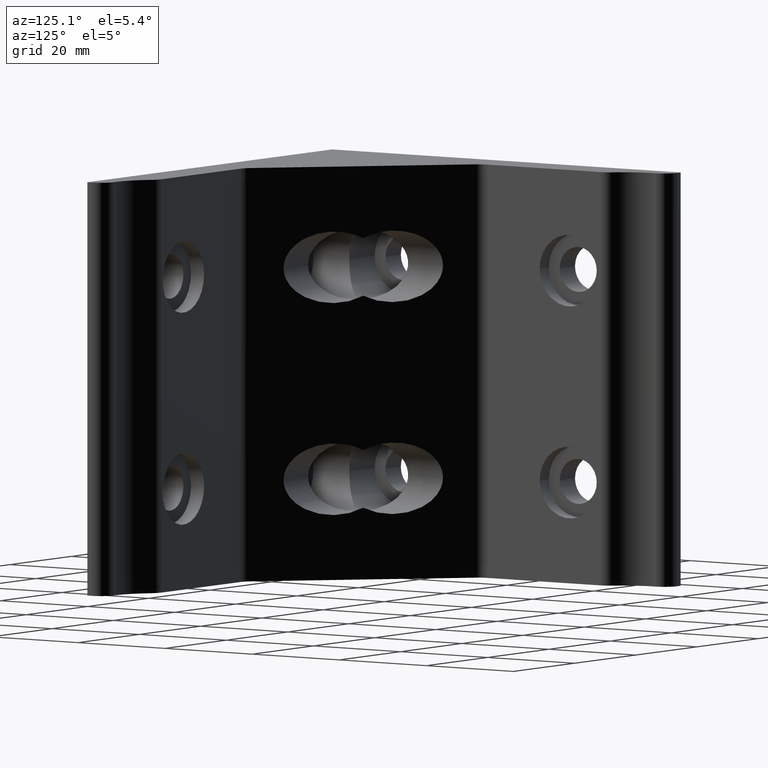
[diagram: clean part render]
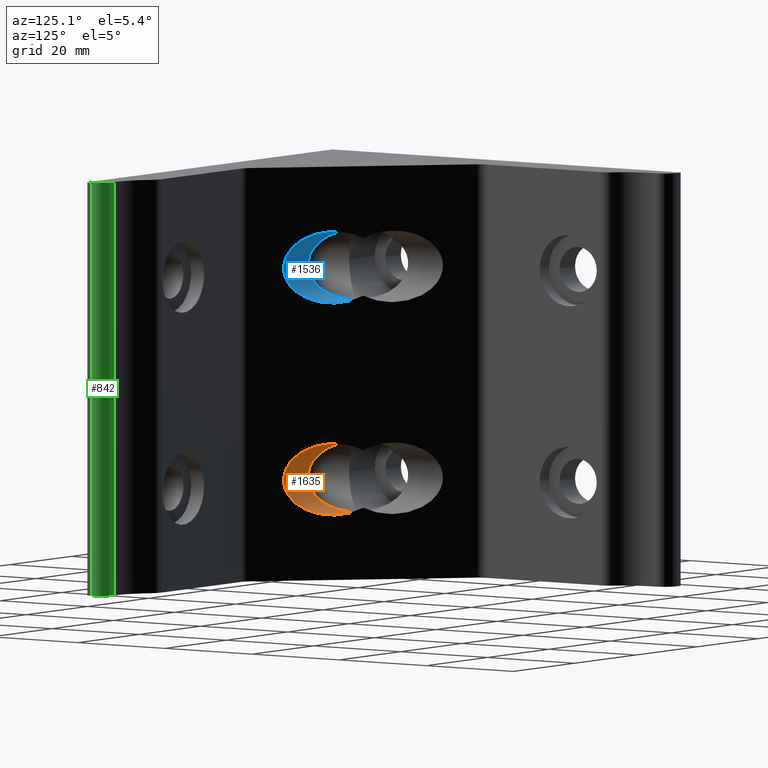
[diagram: same view with three faces highlighted in distinct colors, each labeled with its STEP entity id]
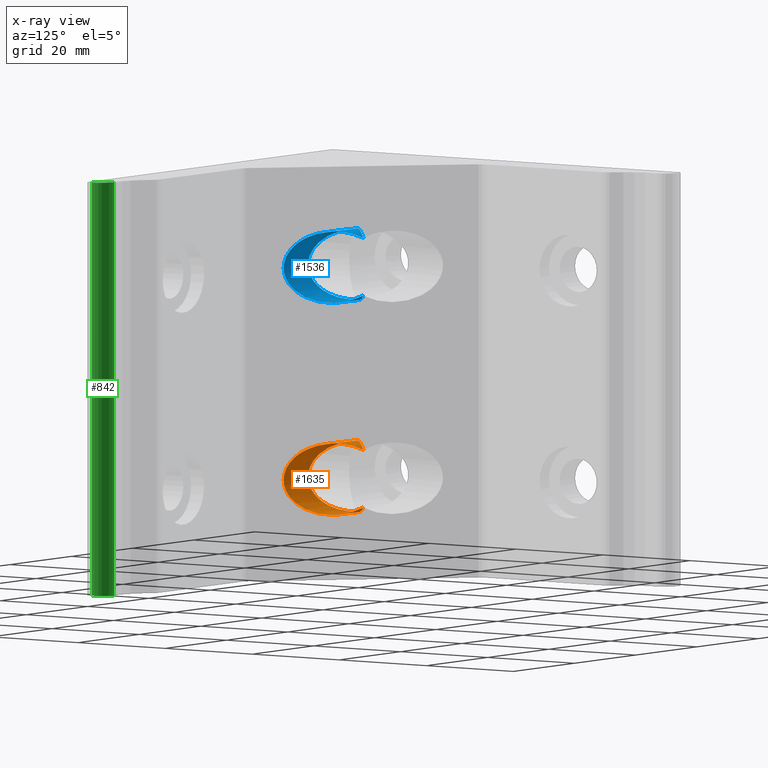
[diagram: x-ray of the same camera — body ghosted, the three highlighted faces saturated]
A machine part, auxiliary view with three faces highlighted in distinct colors.
The next image is the same camera in x-ray (body ghosted, the three faces saturated) — at least one of them is partly hidden behind the body in this view.
Their STEP definitions:

[orange] entity #1635 — the highlighted cylindrical surface (edge-blend (fillet) strip) has radius 6.75 mm, axis along (-1, 0, 0).
#271=CARTESIAN_POINT('',(24.000018716367435,24.000018724322672,-25.437108798652918));
#272=VERTEX_POINT('',#271);
#273=CARTESIAN_POINT('',(34.750040387266836,13.249997053447260,-19.999986901764032));
#274=VERTEX_POINT('',#273);
#275=CARTESIAN_POINT('',(28.000041880785837,19.999995559920080,-19.999986901764032));
#276=DIRECTION('',(-0.707106781186120,-0.707106781186976,0.0));
#277=DIRECTION('',(0.707106781186976,-0.707106781186120,0.0));
#278=AXIS2_PLACEMENT_3D('',#275,#276,#277);
#279=ELLIPSE('',#278,9.545939433857777,6.749998506472821);
#280=EDGE_CURVE('',#272,#274,#279,.T.);
#282=CARTESIAN_POINT('',(24.000018716538079,24.000018724144866,-14.562865004744438));
#283=VERTEX_POINT('',#282);
#284=CARTESIAN_POINT('',(28.000041880785837,19.999995559920080,-19.999986901764032));
#285=DIRECTION('',(-0.707106781186120,-0.707106781186976,0.0));
#286=DIRECTION('',(0.707106781186976,-0.707106781186120,0.0));
#287=AXIS2_PLACEMENT_3D('',#284,#285,#286);
#288=ELLIPSE('',#287,9.545939433857777,6.749998506472821);
#289=EDGE_CURVE('',#274,#283,#288,.T.);
#1288=CARTESIAN_POINT('',(26.749994061392954,13.249997053447260,-19.999986901764032));
#1289=VERTEX_POINT('',#1288);
#1296=CARTESIAN_POINT('',(19.999995559919967,19.999995559920080,-26.749985405736936));
#1297=VERTEX_POINT('',#1296);
#1298=CARTESIAN_POINT('',(26.749994061392954,13.249997053447260,-19.999986901764032));
#1299=CARTESIAN_POINT('',(26.749994061392954,13.249997053447260,-20.321407940804598));
#1300=CARTESIAN_POINT('',(26.695620732449697,13.304370382359139,-21.076625667714353));
#1301=CARTESIAN_POINT('',(26.388535642476427,13.611455472048874,-22.331869680598370));
#1302=CARTESIAN_POINT('',(25.761838146081232,14.238152968124723,-23.618688588530503));
#1303=CARTESIAN_POINT('',(25.015062052279745,14.984929060343347,-24.558337668970267));
#1304=CARTESIAN_POINT('',(24.129594251945946,15.870396861313566,-25.381112265073867));
#1305=CARTESIAN_POINT('',(23.103146656368040,16.896844439051620,-26.053211513201507));
#1306=CARTESIAN_POINT('',(21.782080122997172,18.217911030371852,-26.558774536156555));
#1307=CARTESIAN_POINT('',(20.737748483213522,19.262242474377217,-26.730685308415413));
#1308=CARTESIAN_POINT('',(20.146895854644093,19.853095242470495,-26.749983823299225));
#1309=CARTESIAN_POINT('',(19.999995559919924,19.999995559920301,-26.749985405736940));
#1310=B_SPLINE_CURVE_WITH_KNOTS('',3,(#1298,#1299,#1300,#1301,#1302,#1303,#1304,#1305,#1306,#1307,#1308,#1309),.UNSPECIFIED.,.F.,.U.,(4,1,1,1,1,1,1,1,1,4),(0.0,0.965864149745438,2.263053308432690,3.953662654707975,5.608530894462083,6.480947297210366,8.443630466023322,10.386196269647339,12.269732819113608,12.892984431025196),.UNSPECIFIED.);
#1311=EDGE_CURVE('',#1289,#1297,#1310,.T.);
#1330=CARTESIAN_POINT('',(19.999995559919967,19.999995559920535,-13.249988397791128));
#1331=VERTEX_POINT('',#1330);
#1347=CARTESIAN_POINT('',(19.999995559920034,19.999995559920723,-13.249988397791128));
#1348=CARTESIAN_POINT('',(20.560085256224344,19.439905826738741,-13.249892819479445));
#1349=CARTESIAN_POINT('',(21.578969136827141,18.421021958757592,-13.376099225738248));
#1350=CARTESIAN_POINT('',(23.005282327554823,16.994708783194255,-13.899316566364682));
#1351=CARTESIAN_POINT('',(24.136286865444390,15.863704246088218,-14.612852858091962));
#1352=CARTESIAN_POINT('',(25.064106446063079,14.935884667232585,-15.486429583235715));
#1353=CARTESIAN_POINT('',(25.724069551719708,14.275921562228632,-16.366854947786429));
#1354=CARTESIAN_POINT('',(26.208855255781600,13.791135858628877,-17.296471030971816));
#1355=CARTESIAN_POINT('',(26.535603655104865,13.464387459574937,-18.217115729503654));
#1356=CARTESIAN_POINT('',(26.714717058521501,13.285274056291200,-19.130699658870146));
#1357=CARTESIAN_POINT('',(26.749994061393068,13.249997053447260,-19.741258747909907));
#1358=CARTESIAN_POINT('',(26.749994061393068,13.249997053447260,-19.999986901764032));
#1359=B_SPLINE_CURVE_WITH_KNOTS('',3,(#1347,#1348,#1349,#1350,#1351,#1352,#1353,#1354,#1355,#1356,#1357,#1358),.UNSPECIFIED.,.F.,.U.,(4,1,1,1,1,1,1,1,1,4),(38.678839477752589,41.054825114789701,43.001901861827783,44.911088186749659,46.288007613627585,47.717210725368574,48.742882823178284,49.741815548240275,50.795015249256657,51.572036982258709),.UNSPECIFIED.);
#1360=EDGE_CURVE('',#1331,#1289,#1359,.T.);
#1374=CARTESIAN_POINT('',(24.000018716453155,24.000018724238544,-14.562865004987428));
#1375=CARTESIAN_POINT('',(23.753516019208405,23.753516027451042,-14.381516027372140));
#1376=CARTESIAN_POINT('',(23.125293288210969,23.125294356889754,-13.983149071038612));
#1377=CARTESIAN_POINT('',(21.798743593897257,21.798736280465164,-13.418841232913350));
#1378=CARTESIAN_POINT('',(20.694615800224426,20.694642525909806,-13.249976839397149));
#1379=CARTESIAN_POINT('',(19.999995559919959,19.999995559920322,-13.249988397791128));
#1380=B_SPLINE_CURVE_WITH_KNOTS('',3,(#1374,#1375,#1376,#1377,#1378,#1379),.UNSPECIFIED.,.F.,.U.,(4,1,1,4),(0.0,1.179462295930599,2.915469664699889,5.862084338179670),.UNSPECIFIED.);
#1381=EDGE_CURVE('',#283,#1331,#1380,.T.);
#1407=CARTESIAN_POINT('',(19.999995559919892,19.999995559919938,-26.749985405736936));
#1408=CARTESIAN_POINT('',(20.694615800219282,20.694642525884575,-26.749996964130784));
#1409=CARTESIAN_POINT('',(21.798743593834388,21.798736280526100,-26.581132570607004));
#1410=CARTESIAN_POINT('',(23.125293288320904,23.125294356793347,-26.016824732502531));
#1411=CARTESIAN_POINT('',(23.753516019057656,23.753516027600199,-25.618457776131862));
#1412=CARTESIAN_POINT('',(24.000018716318323,24.000018724377242,-25.437108798511819));
#1413=B_SPLINE_CURVE_WITH_KNOTS('',3,(#1407,#1408,#1409,#1410,#1411,#1412),.UNSPECIFIED.,.F.,.U.,(4,1,1,4),(12.893018224786701,15.839632898263464,17.575640267033297,18.755102562982074),.UNSPECIFIED.);
#1414=EDGE_CURVE('',#1297,#272,#1413,.T.);
#1622=CARTESIAN_POINT('',(4.999998889979906,19.999995559920080,-19.999986901764032));
#1623=DIRECTION('',(-1.0,0.0,0.0));
#1624=DIRECTION('',(0.0,0.592612134394427,-0.805487962770693));
#1625=AXIS2_PLACEMENT_3D('',#1622,#1623,#1624);
#1626=CYLINDRICAL_SURFACE('',#1625,6.749998506472821);
#1627=ORIENTED_EDGE('',*,*,#1414,.F.);
#1628=ORIENTED_EDGE('',*,*,#1311,.F.);
#1629=ORIENTED_EDGE('',*,*,#1360,.F.);
#1630=ORIENTED_EDGE('',*,*,#1381,.F.);
#1631=ORIENTED_EDGE('',*,*,#289,.F.);
#1632=ORIENTED_EDGE('',*,*,#280,.F.);
#1633=EDGE_LOOP('',(#1627,#1628,#1629,#1630,#1631,#1632));
#1634=FACE_OUTER_BOUND('',#1633,.T.);
#1635=ADVANCED_FACE('',(#1634),#1626,.F.);

[blue] entity #1536 — the highlighted cylindrical surface (edge-blend (fillet) strip) has radius 6.75 mm, axis along (-1, 0, 0).
#242=CARTESIAN_POINT('',(24.000018716367435,24.000018724322672,14.562882321187011));
#243=VERTEX_POINT('',#242);
#244=CARTESIAN_POINT('',(34.750040387266836,13.249997053447260,20.000004218075901));
#245=VERTEX_POINT('',#244);
#246=CARTESIAN_POINT('',(28.000041880785837,19.999995559920080,20.000004218075901));
#247=DIRECTION('',(-0.707106781186120,-0.707106781186976,0.0));
#248=DIRECTION('',(0.707106781186976,-0.707106781186120,0.0));
#249=AXIS2_PLACEMENT_3D('',#246,#247,#248);
#250=ELLIPSE('',#249,9.545939433857777,6.749998506472821);
#251=EDGE_CURVE('',#243,#245,#250,.T.);
#253=CARTESIAN_POINT('',(24.000018716538079,24.000018724144866,25.437126115095495));
#254=VERTEX_POINT('',#253);
#255=CARTESIAN_POINT('',(28.000041880785837,19.999995559920080,20.000004218075901));
#256=DIRECTION('',(-0.707106781186120,-0.707106781186976,0.0));
#257=DIRECTION('',(0.707106781186976,-0.707106781186120,0.0));
#258=AXIS2_PLACEMENT_3D('',#255,#256,#257);
#259=ELLIPSE('',#258,9.545939433857777,6.749998506472821);
#260=EDGE_CURVE('',#245,#254,#259,.T.);
#1087=CARTESIAN_POINT('',(26.749994061392954,13.249997053447260,20.000004218075901));
#1088=VERTEX_POINT('',#1087);
#1095=CARTESIAN_POINT('',(19.999995559919967,19.999995559920080,13.250005714102997));
#1096=VERTEX_POINT('',#1095);
#1097=CARTESIAN_POINT('',(26.749994061392954,13.249997053447260,20.000004218075901));
#1098=CARTESIAN_POINT('',(26.749994061392954,13.249997053447260,19.678583179033524));
#1099=CARTESIAN_POINT('',(26.695620732449242,13.304370382358229,18.923365452121793));
#1100=CARTESIAN_POINT('',(26.388535642474153,13.611455472051603,17.668121439236003));
#1101=CARTESIAN_POINT('',(25.761838146078389,14.238152968129725,16.381302531303476));
#1102=CARTESIAN_POINT('',(25.015062052274516,14.984929060344257,15.441653450864649));
#1103=CARTESIAN_POINT('',(24.129594251941512,15.870396861320842,14.618878854761547));
#1104=CARTESIAN_POINT('',(23.103146656360764,16.896844439054803,13.946779606635758));
#1105=CARTESIAN_POINT('',(21.782080122994216,18.217911030376854,13.441216583682433));
#1106=CARTESIAN_POINT('',(20.737748483210567,19.262242474376762,13.269305811424374));
#1107=CARTESIAN_POINT('',(20.146895854643851,19.853095242470779,13.250007296540714));
#1108=CARTESIAN_POINT('',(19.999995559920105,19.999995559920350,13.250005714103009));
#1109=B_SPLINE_CURVE_WITH_KNOTS('',3,(#1097,#1098,#1099,#1100,#1101,#1102,#1103,#1104,#1105,#1106,#1107,#1108),.UNSPECIFIED.,.F.,.U.,(4,1,1,1,1,1,1,1,1,4),(0.0,0.965864149750914,2.263053308438612,3.953662654715253,5.608530894471271,6.480947297219456,8.443630466032710,10.386196269654061,12.269732819114736,12.892984431024788),.UNSPECIFIED.);
#1110=EDGE_CURVE('',#1088,#1096,#1109,.T.);
#1129=CARTESIAN_POINT('',(19.999995559919967,19.999995559920080,26.750002722048805));
#1130=VERTEX_POINT('',#1129);
#1146=CARTESIAN_POINT('',(19.999995559920041,19.999995559920158,26.750002722048809));
#1147=CARTESIAN_POINT('',(20.560085256224689,19.439905826738567,26.750098300360506));
#1148=CARTESIAN_POINT('',(21.578969136827709,18.421021958758956,26.623891894101654));
#1149=CARTESIAN_POINT('',(23.005282327554596,16.994708783194255,26.100674553475237));
#1150=CARTESIAN_POINT('',(24.136286865444390,15.863704246087309,25.387138261747964));
#1151=CARTESIAN_POINT('',(25.064106446063306,14.935884667236223,24.513561536604229));
#1152=CARTESIAN_POINT('',(25.724069551719936,14.275921562226813,23.633136172053540));
#1153=CARTESIAN_POINT('',(26.208855255783192,13.791135858635243,22.703520088868139));
#1154=CARTESIAN_POINT('',(26.535603655103387,13.464387459572208,21.782875390336244));
#1155=CARTESIAN_POINT('',(26.714717058522183,13.285274056292110,20.869291460969791));
#1156=CARTESIAN_POINT('',(26.749994061392840,13.249997053447260,20.258732371930037));
#1157=CARTESIAN_POINT('',(26.749994061392840,13.249997053447260,20.000004218075908));
#1158=B_SPLINE_CURVE_WITH_KNOTS('',3,(#1146,#1147,#1148,#1149,#1150,#1151,#1152,#1153,#1154,#1155,#1156,#1157),.UNSPECIFIED.,.F.,.U.,(4,1,1,1,1,1,1,1,1,4),(38.678839477752632,41.054825114789793,43.001901861827790,44.911088186749666,46.288007613627585,47.717210725368602,48.742882823178306,49.741815548240290,50.795015249256679,51.572036982258730),.UNSPECIFIED.);
#1159=EDGE_CURVE('',#1130,#1088,#1158,.T.);
#1173=CARTESIAN_POINT('',(24.000018716453155,24.000018724238544,25.437126114852504));
#1174=CARTESIAN_POINT('',(23.753516019207041,23.753516027449677,25.618475092468749));
#1175=CARTESIAN_POINT('',(23.125293288208013,23.125294356886570,26.016842048803007));
#1176=CARTESIAN_POINT('',(21.798743593895097,21.798736280463345,26.581149886927228));
#1177=CARTESIAN_POINT('',(20.694615800217459,20.694642525898114,26.750014280442777));
#1178=CARTESIAN_POINT('',(19.999995559919945,19.999995559920187,26.750002722048809));
#1179=B_SPLINE_CURVE_WITH_KNOTS('',3,(#1173,#1174,#1175,#1176,#1177,#1178),.UNSPECIFIED.,.F.,.U.,(4,1,1,4),(0.0,1.179462295936807,2.915469664707228,5.862084338179862),.UNSPECIFIED.);
#1180=EDGE_CURVE('',#254,#1130,#1179,.T.);
#1206=CARTESIAN_POINT('',(19.999995559919938,19.999995559919945,13.250005714102992));
#1207=CARTESIAN_POINT('',(20.694615800218209,20.694642525879239,13.249994155708958));
#1208=CARTESIAN_POINT('',(21.798743593831091,21.798736280525191,13.418858549232404));
#1209=CARTESIAN_POINT('',(23.125293288319881,23.125294356792438,13.983166387336510));
#1210=CARTESIAN_POINT('',(23.753516019056633,23.753516027598835,14.381533343707446));
#1211=CARTESIAN_POINT('',(24.000018716318095,24.000018724376787,14.562882321328111));
#1212=B_SPLINE_CURVE_WITH_KNOTS('',3,(#1206,#1207,#1208,#1209,#1210,#1211),.UNSPECIFIED.,.F.,.U.,(4,1,1,4),(12.893018224786527,15.839632898259161,17.575640267029268,18.755102562982071),.UNSPECIFIED.);
#1213=EDGE_CURVE('',#1096,#243,#1212,.T.);
#1523=CARTESIAN_POINT('',(4.999998889979906,19.999995559920080,20.000004218075901));
#1524=DIRECTION('',(-1.0,0.0,0.0));
#1525=DIRECTION('',(0.0,0.592612134394427,-0.805487962770694));
#1526=AXIS2_PLACEMENT_3D('',#1523,#1524,#1525);
#1527=CYLINDRICAL_SURFACE('',#1526,6.749998506472821);
#1528=ORIENTED_EDGE('',*,*,#1213,.F.);
#1529=ORIENTED_EDGE('',*,*,#1110,.F.);
#1530=ORIENTED_EDGE('',*,*,#1159,.F.);
#1531=ORIENTED_EDGE('',*,*,#1180,.F.);
#1532=ORIENTED_EDGE('',*,*,#260,.F.);
#1533=ORIENTED_EDGE('',*,*,#251,.F.);
#1534=EDGE_LOOP('',(#1528,#1529,#1530,#1531,#1532,#1533));
#1535=FACE_OUTER_BOUND('',#1534,.T.);
#1536=ADVANCED_FACE('',(#1535),#1527,.F.);

[green] entity #842 — the highlighted cylindrical surface (edge-blend (fillet) strip) has radius 3 mm, axis along (0, 0, 1).
#7=CARTESIAN_POINT('',(76.996746588543601,3.999155885909659,-39.0));
#8=VERTEX_POINT('',#7);
#9=CARTESIAN_POINT('',(76.996746588543601,3.999155885909659,39.0));
#10=VERTEX_POINT('',#9);
#11=CARTESIAN_POINT('',(76.996746588543601,3.999155885909659,-39.0));
#12=DIRECTION('',(0.0,0.0,1.0));
#13=VECTOR('',#12,78.0);
#14=LINE('',#11,#13);
#15=EDGE_CURVE('',#8,#10,#14,.T.);
#794=CARTESIAN_POINT('',(79.997492607542540,0.999156630858579,-39.0));
#795=VERTEX_POINT('',#794);
#802=CARTESIAN_POINT('',(79.997492607542540,0.999156630858579,39.0));
#803=VERTEX_POINT('',#802);
#804=CARTESIAN_POINT('',(79.997492607542540,0.999156630858579,-39.0));
#805=DIRECTION('',(0.0,0.0,1.0));
#806=VECTOR('',#805,78.0);
#807=LINE('',#804,#806);
#808=EDGE_CURVE('',#795,#803,#807,.T.);
#819=CARTESIAN_POINT('',(76.997493259572025,0.999156630858579,-78.999973803528064));
#820=DIRECTION('',(0.0,0.0,1.0));
#821=DIRECTION('',(1.0,0.0,0.0));
#822=AXIS2_PLACEMENT_3D('',#819,#820,#821);
#823=CYLINDRICAL_SURFACE('',#822,2.999999347970515);
#824=CARTESIAN_POINT('',(76.997493259572025,0.999156630858579,39.0));
#825=DIRECTION('',(0.0,0.0,1.0));
#826=DIRECTION('',(1.0,0.0,0.0));
#827=AXIS2_PLACEMENT_3D('',#824,#825,#826);
#828=CIRCLE('',#827,2.999999347970515);
#829=EDGE_CURVE('',#803,#10,#828,.T.);
#830=ORIENTED_EDGE('',*,*,#829,.F.);
#831=ORIENTED_EDGE('',*,*,#808,.F.);
#832=CARTESIAN_POINT('',(76.997493259572025,0.999156630858579,-39.0));
#833=DIRECTION('',(0.0,0.0,1.0));
#834=DIRECTION('',(1.0,0.0,0.0));
#835=AXIS2_PLACEMENT_3D('',#832,#833,#834);
#836=CIRCLE('',#835,2.999999347970515);
#837=EDGE_CURVE('',#795,#8,#836,.T.);
#838=ORIENTED_EDGE('',*,*,#837,.T.);
#839=ORIENTED_EDGE('',*,*,#15,.T.);
#840=EDGE_LOOP('',(#830,#831,#838,#839));
#841=FACE_OUTER_BOUND('',#840,.T.);
#842=ADVANCED_FACE('',(#841),#823,.T.);